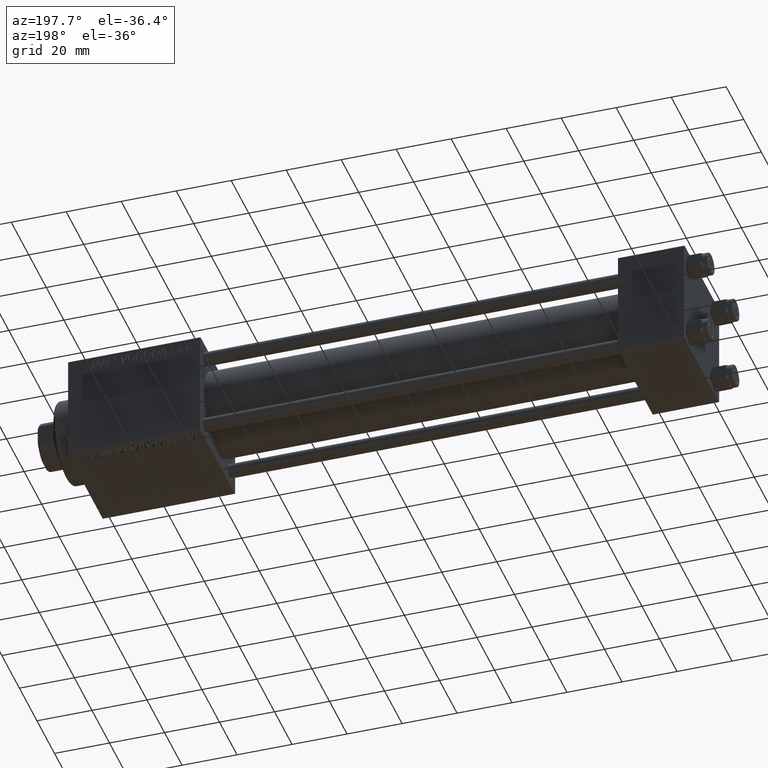
[diagram: clean part render]
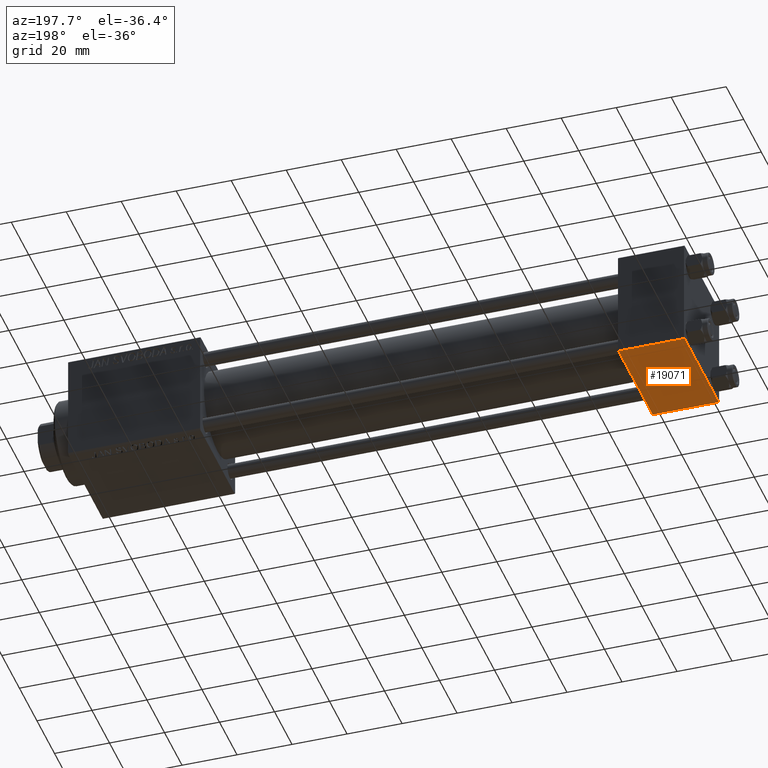
[diagram: same view with one face highlighted and labeled with its STEP entity id]
A machine part, auxiliary view. The second image highlights one B-rep face of the part: STEP entity #19071.
In plain terms, the highlighted planar face has unit normal (0, -0, -1).
Its self-contained STEP definition (entity closure, byte-faithful):
#445 = EDGE_CURVE ( 'NONE', #47732, #30340, #36381, .T. ) ;
#1582 = DIRECTION ( 'NONE',  ( -1.000000000000000000, 0.000000000000000000, 0.000000000000000000 ) ) ;
#1858 = CARTESIAN_POINT ( 'NONE',  ( 0.000000000000000000, 19.50000000000000711, -20.00000000000000711 ) ) ;
#5843 = DIRECTION ( 'NONE',  ( 0.000000000000000000, -1.000000000000000000, 1.734723475976807094E-16 ) ) ;
#6974 = CARTESIAN_POINT ( 'NONE',  ( 24.00000000000000000, -19.50000000000000711, -20.00000000000000000 ) ) ;
#7405 = CARTESIAN_POINT ( 'NONE',  ( 24.00000000000000000, 19.50000000000000711, -20.00000000000000711 ) ) ;
#9333 = CARTESIAN_POINT ( 'NONE',  ( 24.00000000000000000, 20.00000000000000000, -20.00000000000000711 ) ) ;
#9349 = VECTOR ( 'NONE', #12264, 1000.000000000000000 ) ;
#9440 = VECTOR ( 'NONE', #1582, 1000.000000000000000 ) ;
#9794 = CARTESIAN_POINT ( 'NONE',  ( 0.000000000000000000, -19.50000000000000711, -20.00000000000000000 ) ) ;
#10630 = VECTOR ( 'NONE', #5843, 1000.000000000000000 ) ;
#11582 = ORIENTED_EDGE ( 'NONE', *, *, #445, .T. ) ;
#12264 = DIRECTION ( 'NONE',  ( 1.000000000000000000, 0.000000000000000000, 0.000000000000000000 ) ) ;
#13670 = DIRECTION ( 'NONE',  ( 0.000000000000000000, -1.000000000000000000, 1.734723475976807094E-16 ) ) ;
#15824 = DIRECTION ( 'NONE',  ( 0.000000000000000000, -1.734723475976806848E-16, -1.000000000000000000 ) ) ;
#16764 = LINE ( 'NONE', #20835, #10630 ) ;
#16828 = EDGE_LOOP ( 'NONE', ( #43375, #30014, #35054, #11582 ) ) ;
#19071 = ADVANCED_FACE ( 'NONE', ( #27493 ), #42480, .T. ) ;
#19641 = CARTESIAN_POINT ( 'NONE',  ( 24.00000000000000000, 20.00000000000000000, -20.00000000000000711 ) ) ;
#20835 = CARTESIAN_POINT ( 'NONE',  ( 0.000000000000000000, 20.00000000000000000, -20.00000000000000711 ) ) ;
#21794 = LINE ( 'NONE', #9333, #24422 ) ;
#23214 = AXIS2_PLACEMENT_3D ( 'NONE', #19641, #15824, #42988 ) ;
#24422 = VECTOR ( 'NONE', #13670, 1000.000000000000000 ) ;
#26152 = VERTEX_POINT ( 'NONE', #7405 ) ;
#27493 = FACE_OUTER_BOUND ( 'NONE', #16828, .T. ) ;
#29573 = EDGE_CURVE ( 'NONE', #26152, #47732, #21794, .T. ) ;
#30014 = ORIENTED_EDGE ( 'NONE', *, *, #44719, .T. ) ;
#30340 = VERTEX_POINT ( 'NONE', #9794 ) ;
#31564 = CARTESIAN_POINT ( 'NONE',  ( 24.00000000000000000, 19.50000000000000711, -20.00000000000000711 ) ) ;
#34847 = EDGE_CURVE ( 'NONE', #41927, #30340, #16764, .T. ) ;
#35054 = ORIENTED_EDGE ( 'NONE', *, *, #29573, .T. ) ;
#35363 = LINE ( 'NONE', #31564, #9349 ) ;
#36381 = LINE ( 'NONE', #44251, #9440 ) ;
#41927 = VERTEX_POINT ( 'NONE', #1858 ) ;
#42480 = PLANE ( 'NONE',  #23214 ) ;
#42988 = DIRECTION ( 'NONE',  ( 0.000000000000000000, 1.000000000000000000, -1.734723475976806848E-16 ) ) ;
#43375 = ORIENTED_EDGE ( 'NONE', *, *, #34847, .F. ) ;
#44251 = CARTESIAN_POINT ( 'NONE',  ( 0.000000000000000000, -19.50000000000000711, -20.00000000000000000 ) ) ;
#44719 = EDGE_CURVE ( 'NONE', #41927, #26152, #35363, .T. ) ;
#47732 = VERTEX_POINT ( 'NONE', #6974 ) ;